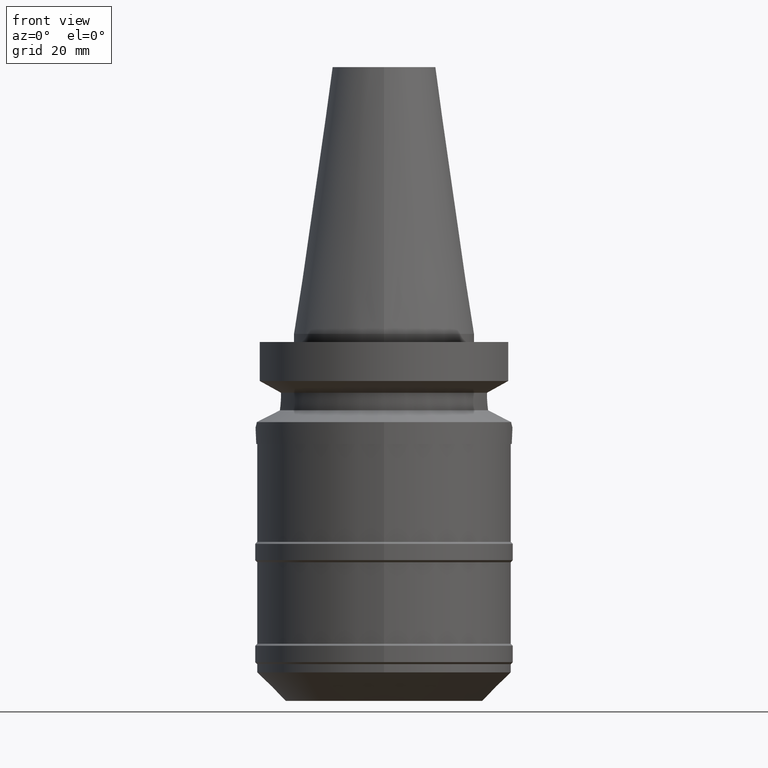
[diagram: clean part render]
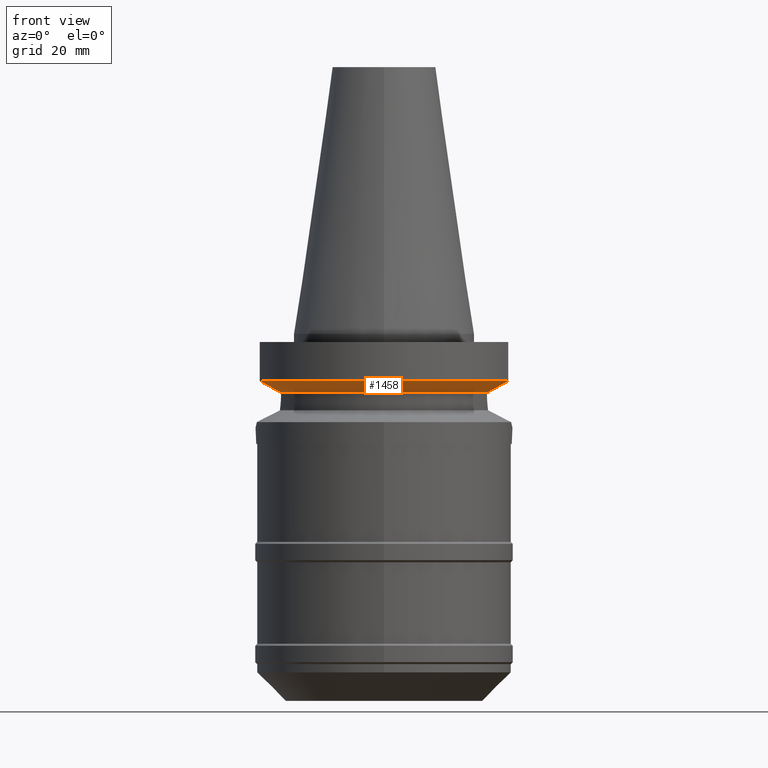
[diagram: same view with one face highlighted and labeled with its STEP entity id]
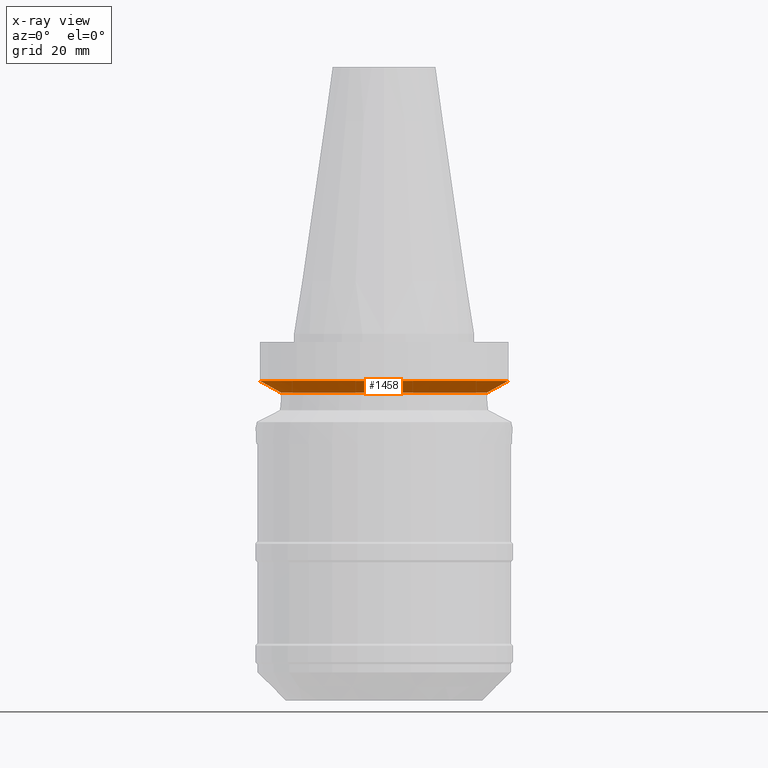
[diagram: x-ray of the same camera — body ghosted, the highlighted face saturated]
A machine part, front view. The second image highlights one B-rep face of the part: STEP entity #1458.
The next image is the same camera in x-ray: the body ghosted, the highlighted face saturated — about 0% of this face is hidden behind the body in this view.
In plain terms, the highlighted conical surface has half-angle 60 deg.
Its self-contained STEP definition (entity closure, byte-faithful):
#207=CARTESIAN_POINT('',(-3.045402291380E1,-8.049999277366E0,
-1.156551216128E1));
#208=CARTESIAN_POINT('',(-2.987645774612E1,-8.049999277366E0,
-1.188789690989E1));
#209=CARTESIAN_POINT('',(-2.872091192671E1,-8.049999725735E0,
-1.253193838270E1));
#210=CARTESIAN_POINT('',(-2.698538656868E1,-8.050002043880E0,
-1.349404327313E1));
#211=CARTESIAN_POINT('',(-2.582730531408E1,-8.049995413791E0,
-1.413348341864E1));
#212=CARTESIAN_POINT('',(-2.524772413185E1,-8.049995413791E0,
-1.445229204324E1));
#251=CARTESIAN_POINT('',(0.E0,1.065333950388E-14,-1.156550565267E1));
#252=DIRECTION('',(0.E0,0.E0,1.E0));
#253=DIRECTION('',(-9.667943721520E-1,-2.555555555555E-1,0.E0));
#254=AXIS2_PLACEMENT_3D('',#251,#252,#253);
#259=CARTESIAN_POINT('',(0.E0,1.065333950388E-14,-1.156550565267E1));
#260=DIRECTION('',(0.E0,0.E0,1.E0));
#261=DIRECTION('',(0.E0,-1.E0,0.E0));
#262=AXIS2_PLACEMENT_3D('',#259,#260,#261);
#267=CARTESIAN_POINT('',(0.E0,1.065333950388E-14,-1.445225699861E1));
#268=DIRECTION('',(0.E0,0.E0,-1.E0));
#269=DIRECTION('',(9.527442516822E-1,-3.037735849057E-1,0.E0));
#270=AXIS2_PLACEMENT_3D('',#267,#268,#269);
#275=CARTESIAN_POINT('',(0.E0,1.065333950388E-14,-1.445225699861E1));
#276=DIRECTION('',(0.E0,0.E0,-1.E0));
#277=DIRECTION('',(0.E0,-1.E0,0.E0));
#278=AXIS2_PLACEMENT_3D('',#275,#276,#277);
#297=CARTESIAN_POINT('',(2.524772216433E1,-8.050001584654E0,-1.445224489046E1));
#298=CARTESIAN_POINT('',(2.582727362477E1,-8.050001584654E0,-1.413345268937E1));
#299=CARTESIAN_POINT('',(2.698547390213E1,-8.049999813275E0,-1.349419197979E1));
#300=CARTESIAN_POINT('',(2.872100156184E1,-8.049998276555E0,-1.253209170607E1));
#301=CARTESIAN_POINT('',(2.987642829748E1,-8.050004145855E0,-1.188786873560E1));
#302=CARTESIAN_POINT('',(3.045402162690E1,-8.050004145855E0,-1.156546830857E1));
#1228=CARTESIAN_POINT('',(-2.524772413185E1,-8.049995413791E0,
-1.445229204324E1));
#1229=VERTEX_POINT('',#1228);
#1230=CARTESIAN_POINT('',(2.524772266958E1,-8.05E0,-1.445225699861E1));
#1231=CARTESIAN_POINT('',(0.E0,-2.65E1,-1.445225699861E1));
#1232=VERTEX_POINT('',#1230);
#1233=VERTEX_POINT('',#1231);
#1244=CARTESIAN_POINT('',(-3.045402291380E1,-8.049999277366E0,
-1.156551216128E1));
#1245=VERTEX_POINT('',#1244);
#1271=CARTESIAN_POINT('',(0.E0,-3.15E1,-1.156550565267E1));
#1272=CARTESIAN_POINT('',(3.045402272279E1,-8.049999999999E0,
-1.156550565267E1));
#1273=VERTEX_POINT('',#1271);
#1274=VERTEX_POINT('',#1272);
#1442=CARTESIAN_POINT('',(0.E0,1.065333950388E-14,-1.300888132564E1));
#1443=DIRECTION('',(0.E0,0.E0,1.E0));
#1444=DIRECTION('',(0.E0,1.E0,0.E0));
#1445=AXIS2_PLACEMENT_3D('',#1442,#1443,#1444);
#1446=CONICAL_SURFACE('',#1445,2.9E1,6.E1);
#1447=ORIENTED_EDGE('',*,*,#1414,.F.);
#1449=ORIENTED_EDGE('',*,*,#1448,.T.);
#1451=ORIENTED_EDGE('',*,*,#1450,.T.);
#1453=ORIENTED_EDGE('',*,*,#1452,.F.);
#1454=ORIENTED_EDGE('',*,*,#1427,.T.);
#1455=ORIENTED_EDGE('',*,*,#1425,.T.);
#1456=EDGE_LOOP('',(#1447,#1449,#1451,#1453,#1454,#1455));
#1457=FACE_OUTER_BOUND('',#1456,.F.);
#213=B_SPLINE_CURVE_WITH_KNOTS('',3,(#207,#208,#209,#210,#211,#212),
.UNSPECIFIED.,.F.,.F.,(4,1,1,4),(0.E0,3.333333333333E-1,6.666666666667E-1,1.E0),
.UNSPECIFIED.);
#255=CIRCLE('',#254,3.15E1);
#263=CIRCLE('',#262,3.15E1);
#271=CIRCLE('',#270,2.65E1);
#279=CIRCLE('',#278,2.65E1);
#303=B_SPLINE_CURVE_WITH_KNOTS('',3,(#297,#298,#299,#300,#301,#302),
.UNSPECIFIED.,.F.,.F.,(4,1,1,4),(0.E0,3.333333333333E-1,6.666666666667E-1,1.E0),
.UNSPECIFIED.);
#1414=EDGE_CURVE('',#1245,#1229,#213,.T.);
#1425=EDGE_CURVE('',#1233,#1229,#279,.T.);
#1427=EDGE_CURVE('',#1232,#1233,#271,.T.);
#1448=EDGE_CURVE('',#1245,#1273,#255,.T.);
#1450=EDGE_CURVE('',#1273,#1274,#263,.T.);
#1452=EDGE_CURVE('',#1232,#1274,#303,.T.);
#1458=ADVANCED_FACE('',(#1457),#1446,.T.);